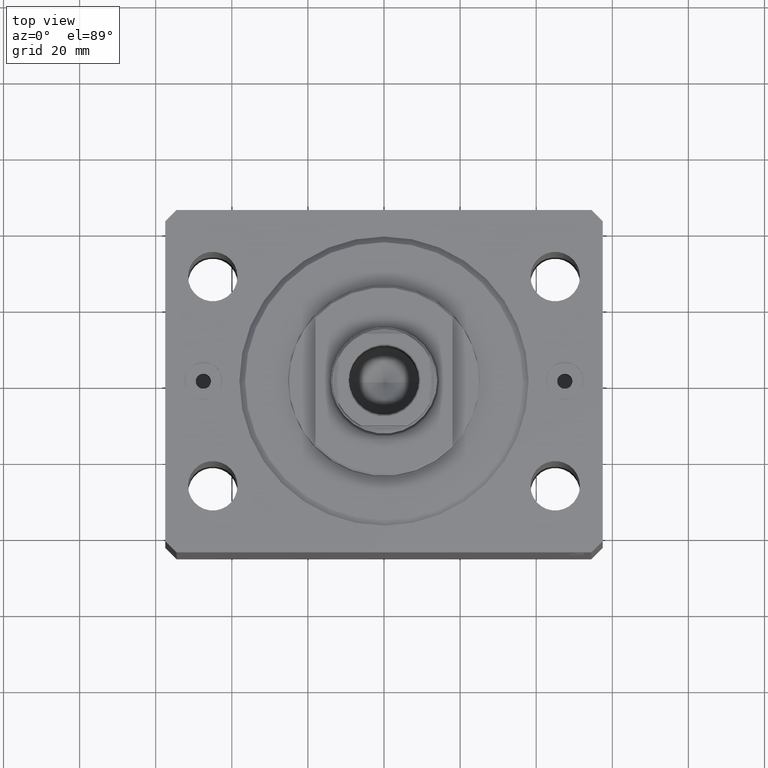
[diagram: clean part render]
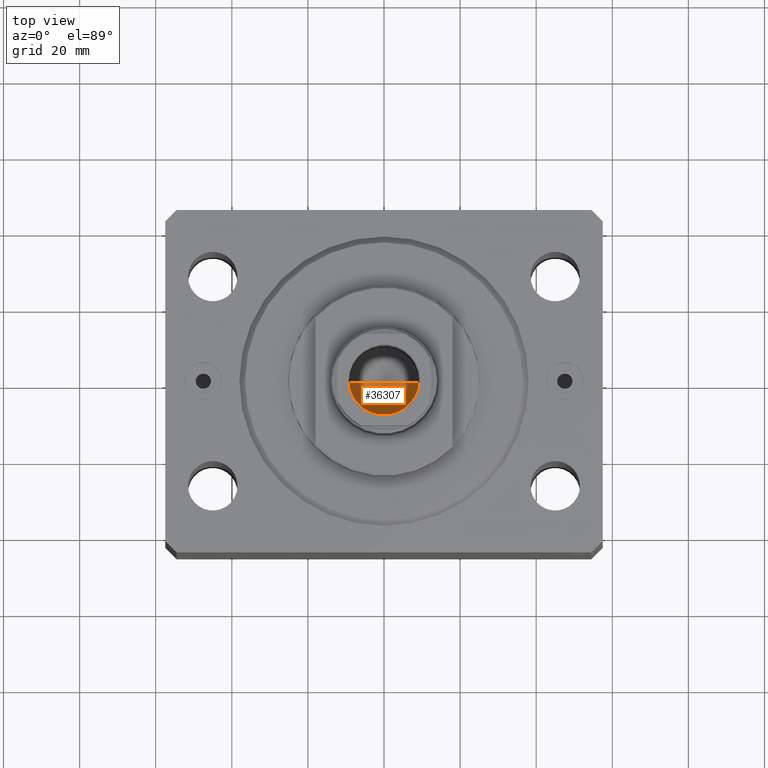
[diagram: same view with one face highlighted and labeled with its STEP entity id]
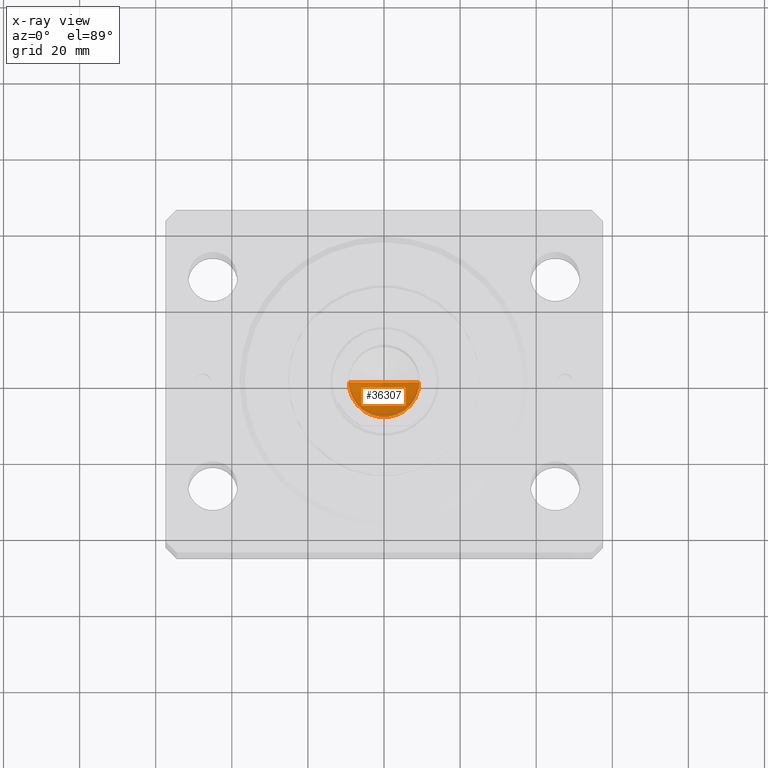
[diagram: x-ray of the same camera — body ghosted, the highlighted face saturated]
A machine part, top view. The second image highlights one B-rep face of the part: STEP entity #36307.
The next image is the same camera in x-ray: the body ghosted, the highlighted face saturated — about 8% of this face is hidden behind the body in this view.
In plain terms, the highlighted conical surface has half-angle 59 deg.
Its self-contained STEP definition (entity closure, byte-faithful):
#1787 = DIRECTION ( 'NONE',  ( 1.000000000000000000, 0.000000000000000000, 0.000000000000000000 ) ) ;
#2485 = VERTEX_POINT ( 'NONE', #5092 ) ;
#5092 = CARTESIAN_POINT ( 'NONE',  ( -9.249999999999994671, 1.132798289211300909E-15, 72.09999999999999432 ) ) ;
#5428 = ORIENTED_EDGE ( 'NONE', *, *, #9726, .F. ) ;
#6755 = CARTESIAN_POINT ( 'NONE',  ( -1.046994375366439223E-14, 0.000000000000000000, 66.54203927399505858 ) ) ;
#8835 = EDGE_CURVE ( 'NONE', #38335, #2485, #16307, .T. ) ;
#9022 = ORIENTED_EDGE ( 'NONE', *, *, #17776, .T. ) ;
#9726 = EDGE_CURVE ( 'NONE', #38335, #30711, #21687, .T. ) ;
#9741 = AXIS2_PLACEMENT_3D ( 'NONE', #43545, #12745, #26452 ) ;
#9984 = CARTESIAN_POINT ( 'NONE',  ( -9.249999999999994671, 1.132798289211300909E-15, 72.09999999999999432 ) ) ;
#12745 = DIRECTION ( 'NONE',  ( -0.000000000000000000, -0.000000000000000000, 1.000000000000000000 ) ) ;
#13248 = VECTOR ( 'NONE', #31116, 1000.000000000000000 ) ;
#15128 = CONICAL_SURFACE ( 'NONE', #17993, 9.249999999999994671, 1.029744258676653423 ) ;
#16307 = LINE ( 'NONE', #9984, #26849 ) ;
#17776 = EDGE_CURVE ( 'NONE', #2485, #30711, #34855, .T. ) ;
#17993 = AXIS2_PLACEMENT_3D ( 'NONE', #39347, #18884, #1787 ) ;
#18664 = FACE_OUTER_BOUND ( 'NONE', #33320, .T. ) ;
#18884 = DIRECTION ( 'NONE',  ( -0.000000000000000000, -0.000000000000000000, 1.000000000000000000 ) ) ;
#21642 = ORIENTED_EDGE ( 'NONE', *, *, #8835, .T. ) ;
#21687 = LINE ( 'NONE', #42369, #13248 ) ;
#24845 = CARTESIAN_POINT ( 'NONE',  ( 9.249999999999994671, 0.000000000000000000, 72.09999999999999432 ) ) ;
#26452 = DIRECTION ( 'NONE',  ( 1.000000000000000000, 0.000000000000000000, 0.000000000000000000 ) ) ;
#26849 = VECTOR ( 'NONE', #30011, 1000.000000000000000 ) ;
#30011 = DIRECTION ( 'NONE',  ( -0.8571673007021117785, 1.049727191138617956E-16, 0.5150380749100550437 ) ) ;
#30711 = VERTEX_POINT ( 'NONE', #24845 ) ;
#31116 = DIRECTION ( 'NONE',  ( 0.8571673007021117785, 0.000000000000000000, 0.5150380749100550437 ) ) ;
#33320 = EDGE_LOOP ( 'NONE', ( #5428, #21642, #9022 ) ) ;
#34855 = CIRCLE ( 'NONE', #9741, 9.249999999999994671 ) ;
#36307 = ADVANCED_FACE ( 'NONE', ( #18664 ), #15128, .F. ) ;
#38335 = VERTEX_POINT ( 'NONE', #6755 ) ;
#39347 = CARTESIAN_POINT ( 'NONE',  ( 0.000000000000000000, 0.000000000000000000, 72.09999999999999432 ) ) ;
#42369 = CARTESIAN_POINT ( 'NONE',  ( 9.249999999999994671, 0.000000000000000000, 72.09999999999999432 ) ) ;
#43545 = CARTESIAN_POINT ( 'NONE',  ( 0.000000000000000000, 0.000000000000000000, 72.09999999999999432 ) ) ;